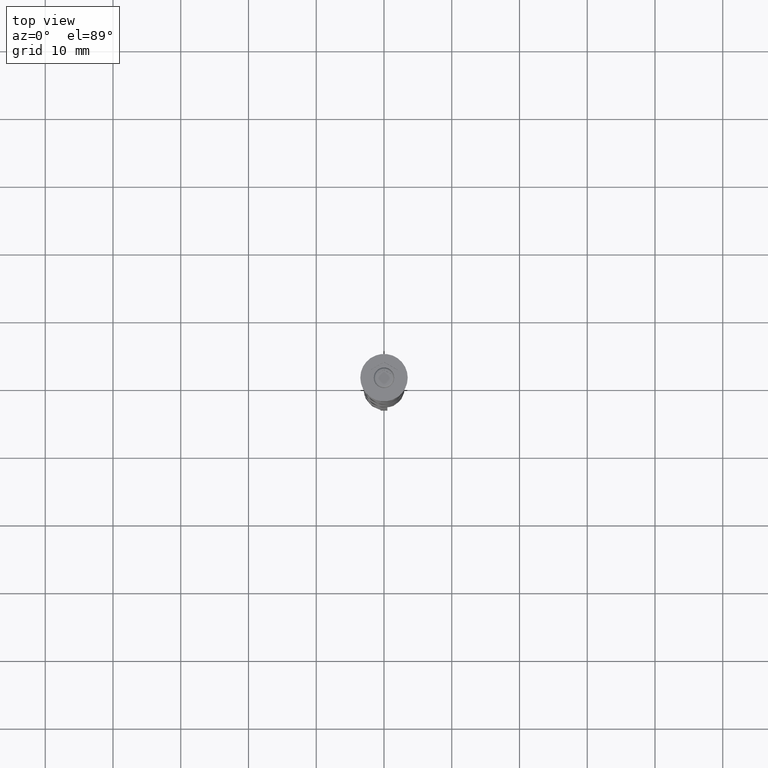
[diagram: clean part render]
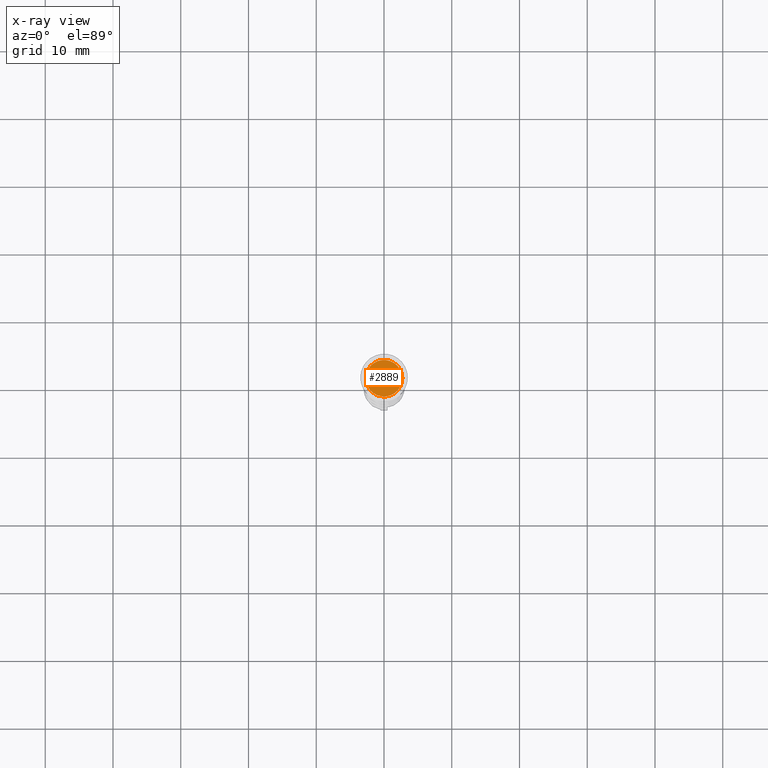
[diagram: x-ray — body ghosted, one internal face saturated and labeled with its STEP entity id]
A machine part, top view, then the same camera in x-ray: the body is ghosted and one INTERNAL B-rep face — a face not visible from any outside direction — is saturated and labeled: STEP entity #2889.
In plain terms, the highlighted planar face has unit normal (0, 0, -1).
Its self-contained STEP definition (entity closure, byte-faithful):
#286 = ORIENTED_EDGE ( 'NONE', *, *, #2000, .T. ) ;
#296 = AXIS2_PLACEMENT_3D ( 'NONE', #3152, #1828, #2857 ) ;
#498 = DIRECTION ( 'NONE',  ( -1.000000000000000000, 0.000000000000000000, 0.000000000000000000 ) ) ;
#680 = EDGE_CURVE ( 'NONE', #3443, #1471, #2574, .T. ) ;
#1069 = AXIS2_PLACEMENT_3D ( 'NONE', #2107, #2905, #498 ) ;
#1192 = CARTESIAN_POINT ( 'NONE',  ( 0.000000000000000000, 0.000000000000000000, -5.500000000000000000 ) ) ;
#1282 = FACE_OUTER_BOUND ( 'NONE', #2071, .T. ) ;
#1417 = AXIS2_PLACEMENT_3D ( 'NONE', #1192, #2277, #3312 ) ;
#1471 = VERTEX_POINT ( 'NONE', #2600 ) ;
#1828 = DIRECTION ( 'NONE',  ( 0.000000000000000000, 0.000000000000000000, -1.000000000000000000 ) ) ;
#2000 = EDGE_CURVE ( 'NONE', #1471, #3443, #3137, .T. ) ;
#2071 = EDGE_LOOP ( 'NONE', ( #286, #2539 ) ) ;
#2107 = CARTESIAN_POINT ( 'NONE',  ( 0.000000000000000000, 0.000000000000000000, -5.500000000000000000 ) ) ;
#2277 = DIRECTION ( 'NONE',  ( -0.000000000000000000, -0.000000000000000000, 1.000000000000000000 ) ) ;
#2356 = PLANE ( 'NONE',  #296 ) ;
#2539 = ORIENTED_EDGE ( 'NONE', *, *, #680, .T. ) ;
#2574 = CIRCLE ( 'NONE', #1069, 2.700000000000002398 ) ;
#2598 = CARTESIAN_POINT ( 'NONE',  ( 2.700000000000002398, 3.490243377569959512E-16, -5.500000000000000000 ) ) ;
#2600 = CARTESIAN_POINT ( 'NONE',  ( -2.700000000000002398, 0.000000000000000000, -5.500000000000000000 ) ) ;
#2857 = DIRECTION ( 'NONE',  ( -1.000000000000000000, 0.000000000000000000, -0.000000000000000000 ) ) ;
#2889 = ADVANCED_FACE ( 'NONE', ( #1282 ), #2356, .F. ) ;
#2905 = DIRECTION ( 'NONE',  ( -0.000000000000000000, -0.000000000000000000, 1.000000000000000000 ) ) ;
#3137 = CIRCLE ( 'NONE', #1417, 2.700000000000002398 ) ;
#3152 = CARTESIAN_POINT ( 'NONE',  ( 0.000000000000000000, 0.000000000000000000, -5.500000000000000000 ) ) ;
#3312 = DIRECTION ( 'NONE',  ( -1.000000000000000000, 0.000000000000000000, 0.000000000000000000 ) ) ;
#3443 = VERTEX_POINT ( 'NONE', #2598 ) ;